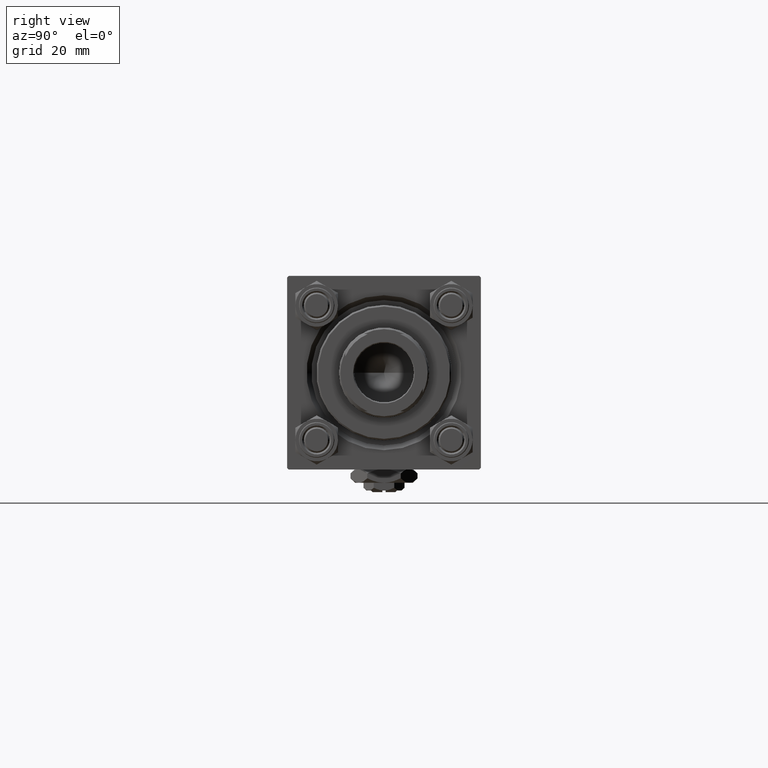
[diagram: clean part render]
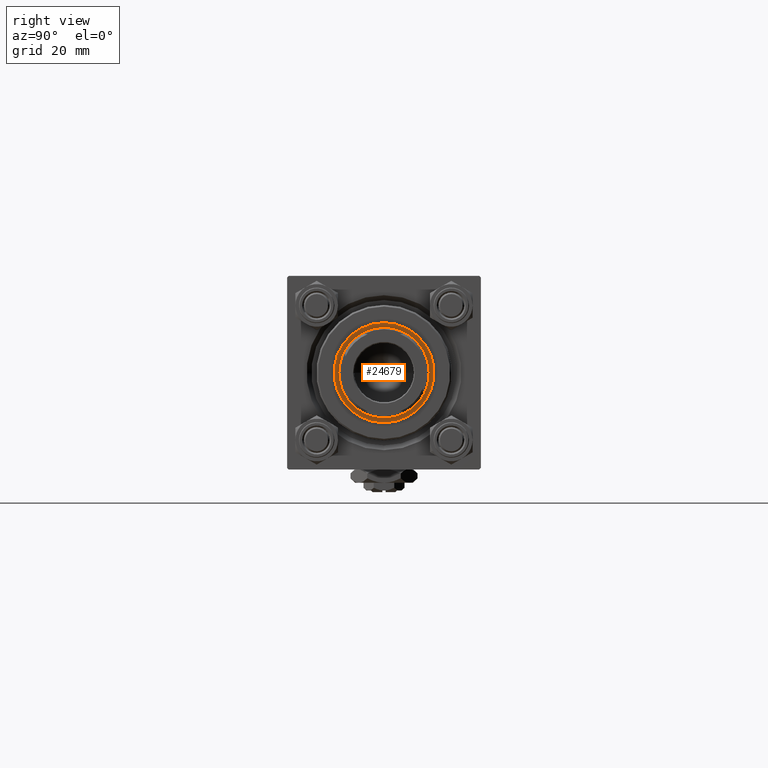
[diagram: same view with one face highlighted and labeled with its STEP entity id]
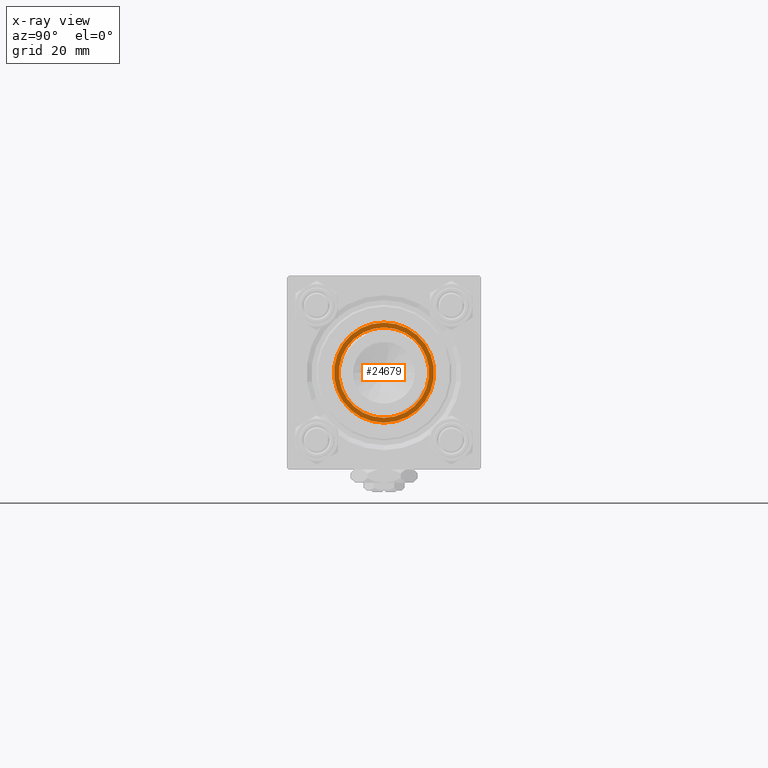
[diagram: x-ray of the same camera — body ghosted, the highlighted face saturated]
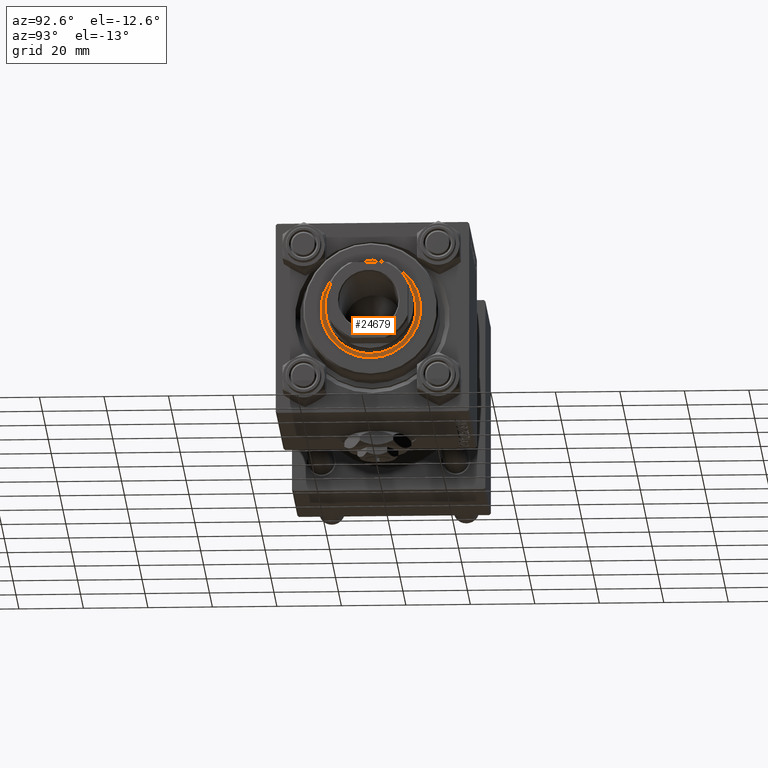
[diagram: same view with one face highlighted and labeled with its STEP entity id]
A machine part, right view. The second image highlights one B-rep face of the part: STEP entity #24679.
The next image is the same camera in x-ray: the body ghosted, the highlighted face saturated — about 0% of this face is hidden behind the body in this view.
A second angle (auxiliary view) of the same face is appended — the face is thin or edge-on in the first view.
In plain terms, the highlighted planar face has unit normal (1, 0, -0).
Its self-contained STEP definition (entity closure, byte-faithful):
#962 = EDGE_LOOP ( 'NONE', ( #4169, #13258 ) ) ;
#2098 = CARTESIAN_POINT ( 'NONE',  ( 14.00000000000000178, 0.000000000000000000, 40.20000000000000284 ) ) ;
#2335 = CARTESIAN_POINT ( 'NONE',  ( 0.000000000000000000, 0.000000000000000000, 40.20000000000000284 ) ) ;
#2796 = VERTEX_POINT ( 'NONE', #2098 ) ;
#3727 = CARTESIAN_POINT ( 'NONE',  ( -14.00000000000000178, 1.714505518806294835E-15, 40.20000000000000284 ) ) ;
#4169 = ORIENTED_EDGE ( 'NONE', *, *, #19225, .T. ) ;
#4964 = VERTEX_POINT ( 'NONE', #25633 ) ;
#5975 = FACE_BOUND ( 'NONE', #962, .T. ) ;
#6710 = VERTEX_POINT ( 'NONE', #29777 ) ;
#7634 = DIRECTION ( 'NONE',  ( 1.000000000000000000, 0.000000000000000000, 0.000000000000000000 ) ) ;
#10509 = CIRCLE ( 'NONE', #25462, 14.00000000000000178 ) ;
#10542 = EDGE_CURVE ( 'NONE', #4964, #6710, #29303, .T. ) ;
#10677 = AXIS2_PLACEMENT_3D ( 'NONE', #51191, #35278, #43618 ) ;
#12209 = DIRECTION ( 'NONE',  ( -0.000000000000000000, -0.000000000000000000, -1.000000000000000000 ) ) ;
#13258 = ORIENTED_EDGE ( 'NONE', *, *, #36001, .T. ) ;
#13733 = EDGE_LOOP ( 'NONE', ( #44872, #28903 ) ) ;
#16287 = CIRCLE ( 'NONE', #32088, 14.00000000000000178 ) ;
#18241 = PLANE ( 'NONE',  #35179 ) ;
#19225 = EDGE_CURVE ( 'NONE', #2796, #46912, #16287, .T. ) ;
#23047 = CARTESIAN_POINT ( 'NONE',  ( 0.000000000000000000, 0.000000000000000000, 40.20000000000000284 ) ) ;
#23858 = DIRECTION ( 'NONE',  ( -0.000000000000000000, -0.000000000000000000, -1.000000000000000000 ) ) ;
#24679 = ADVANCED_FACE ( 'NONE', ( #35116, #5975 ), #18241, .T. ) ;
#25462 = AXIS2_PLACEMENT_3D ( 'NONE', #47672, #12209, #39850 ) ;
#25633 = CARTESIAN_POINT ( 'NONE',  ( -15.50000000000000000, 1.898202538678397557E-15, 40.20000000000000284 ) ) ;
#25811 = DIRECTION ( 'NONE',  ( 0.000000000000000000, 0.000000000000000000, 1.000000000000000000 ) ) ;
#28903 = ORIENTED_EDGE ( 'NONE', *, *, #10542, .T. ) ;
#29303 = CIRCLE ( 'NONE', #30148, 15.50000000000000000 ) ;
#29777 = CARTESIAN_POINT ( 'NONE',  ( 15.50000000000000000, 0.000000000000000000, 40.20000000000000284 ) ) ;
#30148 = AXIS2_PLACEMENT_3D ( 'NONE', #23047, #47537, #7634 ) ;
#32088 = AXIS2_PLACEMENT_3D ( 'NONE', #51243, #23858, #47581 ) ;
#33892 = DIRECTION ( 'NONE',  ( 1.000000000000000000, 0.000000000000000000, -0.000000000000000000 ) ) ;
#35116 = FACE_OUTER_BOUND ( 'NONE', #13733, .T. ) ;
#35179 = AXIS2_PLACEMENT_3D ( 'NONE', #2335, #25811, #33892 ) ;
#35278 = DIRECTION ( 'NONE',  ( 0.000000000000000000, 0.000000000000000000, 1.000000000000000000 ) ) ;
#36001 = EDGE_CURVE ( 'NONE', #46912, #2796, #10509, .T. ) ;
#39850 = DIRECTION ( 'NONE',  ( 1.000000000000000000, 0.000000000000000000, 0.000000000000000000 ) ) ;
#43134 = CIRCLE ( 'NONE', #10677, 15.50000000000000000 ) ;
#43618 = DIRECTION ( 'NONE',  ( 1.000000000000000000, 0.000000000000000000, 0.000000000000000000 ) ) ;
#44872 = ORIENTED_EDGE ( 'NONE', *, *, #44931, .T. ) ;
#44931 = EDGE_CURVE ( 'NONE', #6710, #4964, #43134, .T. ) ;
#46912 = VERTEX_POINT ( 'NONE', #3727 ) ;
#47537 = DIRECTION ( 'NONE',  ( 0.000000000000000000, 0.000000000000000000, 1.000000000000000000 ) ) ;
#47581 = DIRECTION ( 'NONE',  ( 1.000000000000000000, 0.000000000000000000, 0.000000000000000000 ) ) ;
#47672 = CARTESIAN_POINT ( 'NONE',  ( 0.000000000000000000, 0.000000000000000000, 40.20000000000000284 ) ) ;
#51191 = CARTESIAN_POINT ( 'NONE',  ( 0.000000000000000000, 0.000000000000000000, 40.20000000000000284 ) ) ;
#51243 = CARTESIAN_POINT ( 'NONE',  ( 0.000000000000000000, 0.000000000000000000, 40.20000000000000284 ) ) ;